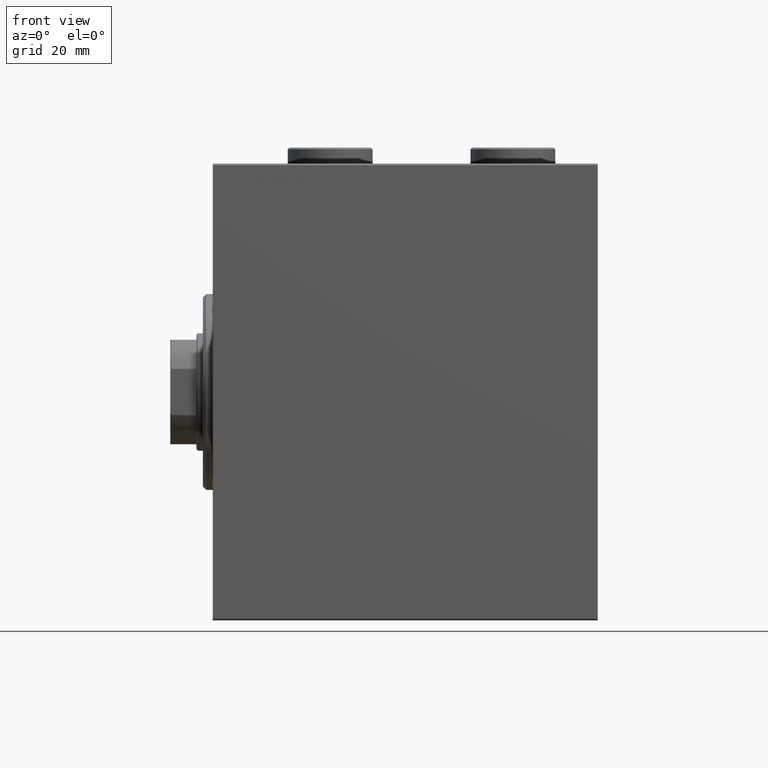
[diagram: clean part render]
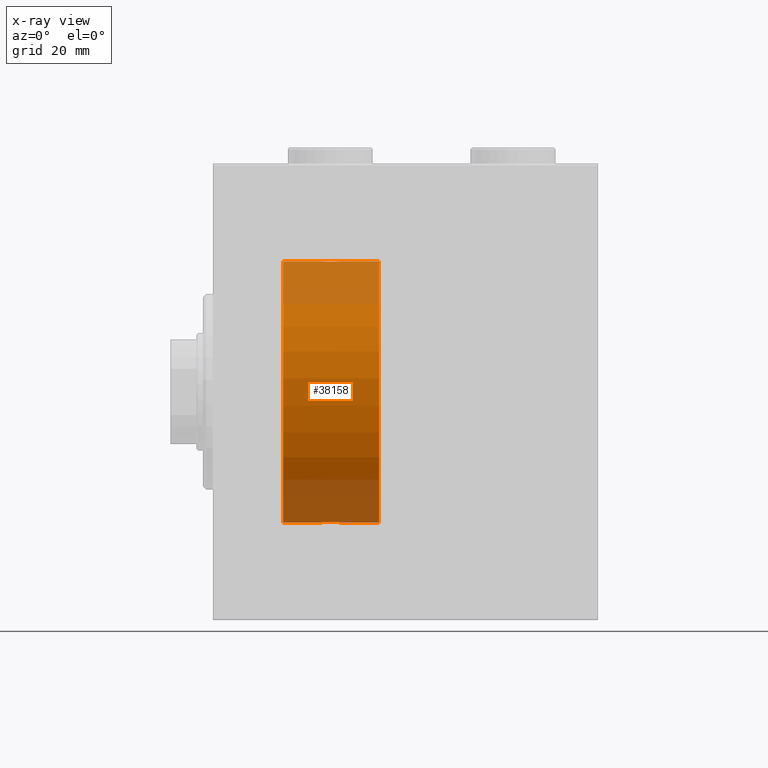
[diagram: x-ray — body ghosted, one internal face saturated and labeled with its STEP entity id]
A machine part, front view, then the same camera in x-ray: the body is ghosted and one INTERNAL B-rep face — a face not visible from any outside direction — is saturated and labeled: STEP entity #38158.
In plain terms, the highlighted cylindrical surface (partial cylindrical patch) has radius 40 mm, axis along (-1, -0, -0).
Its self-contained STEP definition (entity closure, byte-faithful):
#667 = DIRECTION ( 'NONE',  ( -1.000000000000000000, -0.000000000000000000, -0.000000000000000000 ) ) ;
#1118 = ORIENTED_EDGE ( 'NONE', *, *, #4089, .F. ) ;
#2106 = DIRECTION ( 'NONE',  ( 0.000000000000000000, 0.000000000000000000, 1.000000000000000000 ) ) ;
#2261 = CARTESIAN_POINT ( 'NONE',  ( 33.73902383005257377, -1.981471132463168638, 39.95113231465138881 ) ) ;
#3021 = VERTEX_POINT ( 'NONE', #14006 ) ;
#3136 = CARTESIAN_POINT ( 'NONE',  ( 36.20041286019198168, -2.999840380514735116, -39.88735335562824957 ) ) ;
#3814 = CARTESIAN_POINT ( 'NONE',  ( 35.03510674146484405, -2.847401743820449305, -39.89859630624607689 ) ) ;
#4062 = DIRECTION ( 'NONE',  ( -1.000000000000000000, -0.000000000000000000, -0.000000000000000000 ) ) ;
#4089 = EDGE_CURVE ( 'NONE', #32821, #32331, #4278, .T. ) ;
#4278 = LINE ( 'NONE', #39022, #11194 ) ;
#4345 = B_SPLINE_CURVE_WITH_KNOTS ( 'NONE', 3,
 ( #17402, #45455, #38788, #10731, #14176, #39011, #41782, #24538, #24993, #28215, #7492, #10953, #17175, #45237, #42239, #24766, #3136, #38333, #28442, #21304, #3814, #27538, #31426, #31207, #13725, #27759, #34446, #42459, #13941, #10271, #21082, #10496 ),
 .UNSPECIFIED., .F., .F.,
 ( 4, 2, 2, 2, 2, 2, 2, 2, 2, 2, 2, 2, 2, 2, 2, 4 ),
 ( 0.009382660366305110508, 0.009968941372944146312, 0.01055522237958318212, 0.01114150338622221792, 0.01172778439286125372, 0.01231406539950028953, 0.01290034640613932533, 0.01348662741277836113, 0.01407290841941739694, 0.01465918942605643274, 0.01524547043269546855, 0.01583175143933450435, 0.01641803244597354189, 0.01700431345261257596, 0.01759059445925161003, 0.01876315647252968163 ),
 .UNSPECIFIED. ) ;
#6175 = CARTESIAN_POINT ( 'NONE',  ( 32.99999999999999289, -1.483452932268112700E-23, 40.00000000000000000 ) ) ;
#6403 = CARTESIAN_POINT ( 'NONE',  ( 39.00000000000000000, -4.750840494920854782E-16, 40.00000000000000000 ) ) ;
#6792 = ORIENTED_EDGE ( 'NONE', *, *, #20365, .F. ) ;
#6892 = CIRCLE ( 'NONE', #22333, 40.00000000000000000 ) ;
#7492 = CARTESIAN_POINT ( 'NONE',  ( 37.83044822822401443, -2.384933850258100119, -39.92898715513241115 ) ) ;
#7858 = DIRECTION ( 'NONE',  ( 0.000000000000000000, 0.000000000000000000, 1.000000000000000000 ) ) ;
#8464 = VECTOR ( 'NONE', #667, 1000.000000000000000 ) ;
#8937 = CARTESIAN_POINT ( 'NONE',  ( 37.50088468404034359, -2.604941918888319385, 39.91523680494982784 ) ) ;
#9853 = ORIENTED_EDGE ( 'NONE', *, *, #30648, .T. ) ;
#9860 = CARTESIAN_POINT ( 'NONE',  ( 36.39109692509332916, -2.980812880639903906, 39.88879797994688658 ) ) ;
#10271 = CARTESIAN_POINT ( 'NONE',  ( 33.07973825008353685, -0.7903958539027382546, -39.99381900068937767 ) ) ;
#10496 = CARTESIAN_POINT ( 'NONE',  ( 32.99999999999999289, 4.605585004310627937E-15, -40.00000000000000000 ) ) ;
#10731 = CARTESIAN_POINT ( 'NONE',  ( 38.90425173651351543, -0.7773146824710984726, -39.99291453282344122 ) ) ;
#10953 = CARTESIAN_POINT ( 'NONE',  ( 37.50443082913466242, -2.602909538701748016, -39.91537030566259148 ) ) ;
#11194 = VECTOR ( 'NONE', #4062, 1000.000000000000000 ) ;
#11550 = CARTESIAN_POINT ( 'NONE',  ( 51.00000000000000711, 0.000000000000000000, 40.00000000000000000 ) ) ;
#12303 = EDGE_CURVE ( 'NONE', #3021, #16593, #31503, .T. ) ;
#12386 = CARTESIAN_POINT ( 'NONE',  ( 33.01898122889073761, -0.3904143323715978386, 39.99856256910221219 ) ) ;
#12455 = CYLINDRICAL_SURFACE ( 'NONE', #15555, 40.00000000000000000 ) ;
#12617 = CARTESIAN_POINT ( 'NONE',  ( 38.69537007708435539, -1.331594428131646302, 39.97823692017208685 ) ) ;
#12819 = CARTESIAN_POINT ( 'NONE',  ( 21.60000000000000142, 4.898587196589413026E-15, -40.00000000000000000 ) ) ;
#12929 = CARTESIAN_POINT ( 'NONE',  ( 39.00000000000000000, -4.750840494920854782E-16, 40.00000000000000000 ) ) ;
#13068 = CARTESIAN_POINT ( 'NONE',  ( 39.00000000000000000, 4.898587181754971267E-15, -40.00000000000000000 ) ) ;
#13073 = CARTESIAN_POINT ( 'NONE',  ( 35.60477516546423260, -2.980272303779554210, 39.88883864243167920 ) ) ;
#13299 = CARTESIAN_POINT ( 'NONE',  ( 35.79958713980801832, -2.999840380514748883, 39.88735335562824957 ) ) ;
#13385 = CARTESIAN_POINT ( 'NONE',  ( 51.00000000000000711, 4.898587196589413026E-15, -40.00000000000000000 ) ) ;
#13725 = CARTESIAN_POINT ( 'NONE',  ( 34.01863720485770415, -2.261082456166700005, -39.93628274425758917 ) ) ;
#13941 = CARTESIAN_POINT ( 'NONE',  ( 33.30462992291564461, -1.331594428131640528, -39.97823692017208685 ) ) ;
#14006 = CARTESIAN_POINT ( 'NONE',  ( 51.00000000000000711, 4.898587196589413026E-15, -40.00000000000000000 ) ) ;
#14176 = CARTESIAN_POINT ( 'NONE',  ( 38.84665273013138176, -0.9668189122103333366, -39.98872185468385254 ) ) ;
#15555 = AXIS2_PLACEMENT_3D ( 'NONE', #23051, #33628, #2106 ) ;
#16297 = CARTESIAN_POINT ( 'NONE',  ( 37.32853644746295885, -2.696981015661930936, 39.90904630908467254 ) ) ;
#16593 = VERTEX_POINT ( 'NONE', #13068 ) ;
#16977 = CARTESIAN_POINT ( 'NONE',  ( 33.61492399084645655, -1.830402106103517834, 39.95843610133493229 ) ) ;
#17175 = CARTESIAN_POINT ( 'NONE',  ( 37.33224268865864559, -2.695129988695729839, -39.90917164320280364 ) ) ;
#17402 = CARTESIAN_POINT ( 'NONE',  ( 39.00000000000000000, 4.898587181754971267E-15, -40.00000000000000000 ) ) ;
#18192 = LINE ( 'NONE', #20735, #24905 ) ;
#18194 = ORIENTED_EDGE ( 'NONE', *, *, #12303, .T. ) ;
#18256 = DIRECTION ( 'NONE',  ( 0.000000000000000000, 0.000000000000000000, 1.000000000000000000 ) ) ;
#18664 = CARTESIAN_POINT ( 'NONE',  ( 51.00000000000000711, 0.000000000000000000, 0.000000000000000000 ) ) ;
#18985 = VERTEX_POINT ( 'NONE', #44049 ) ;
#19532 = CARTESIAN_POINT ( 'NONE',  ( 35.03061658105534093, -2.845855236045346626, 39.89870693240651178 ) ) ;
#20223 = CARTESIAN_POINT ( 'NONE',  ( 33.09574826348647036, -0.7773146824711030245, 39.99291453282344833 ) ) ;
#20306 = DIRECTION ( 'NONE',  ( -1.000000000000000000, -0.000000000000000000, -0.000000000000000000 ) ) ;
#20365 = EDGE_CURVE ( 'NONE', #3021, #31234, #43809, .T. ) ;
#20735 = CARTESIAN_POINT ( 'NONE',  ( 51.00000000000000711, 0.000000000000000000, 40.00000000000000000 ) ) ;
#21082 = CARTESIAN_POINT ( 'NONE',  ( 32.99999999999998579, -0.3964922677423637909, -39.99999999999998579 ) ) ;
#21304 = CARTESIAN_POINT ( 'NONE',  ( 35.22544321173658943, -2.904869018727217700, -39.89440043036668726 ) ) ;
#22333 = AXIS2_PLACEMENT_3D ( 'NONE', #28615, #39187, #18256 ) ;
#22830 = ORIENTED_EDGE ( 'NONE', *, *, #44843, .T. ) ;
#23051 = CARTESIAN_POINT ( 'NONE',  ( 51.00000000000000711, 0.000000000000000000, 0.000000000000000000 ) ) ;
#23208 = ORIENTED_EDGE ( 'NONE', *, *, #29493, .T. ) ;
#23237 = VERTEX_POINT ( 'NONE', #12929 ) ;
#23408 = VERTEX_POINT ( 'NONE', #12819 ) ;
#23442 = CARTESIAN_POINT ( 'NONE',  ( 34.49556917086534469, -2.602909538701760450, 39.91537030566259148 ) ) ;
#23901 = CARTESIAN_POINT ( 'NONE',  ( 36.96489325853514885, -2.847401743820463516, 39.89859630624608400 ) ) ;
#24538 = CARTESIAN_POINT ( 'NONE',  ( 38.38507600915353635, -1.830402106103512505, -39.95843610133493229 ) ) ;
#24766 = CARTESIAN_POINT ( 'NONE',  ( 36.39522483453576029, -2.980272303779541332, -39.88883864243169342 ) ) ;
#24905 = VECTOR ( 'NONE', #35687, 1000.000000000000000 ) ;
#24993 = CARTESIAN_POINT ( 'NONE',  ( 38.26097616994740491, -1.981471132463162643, -39.95113231465139592 ) ) ;
#26015 = EDGE_CURVE ( 'NONE', #31234, #23237, #18192, .T. ) ;
#26417 = CARTESIAN_POINT ( 'NONE',  ( 35.22130476584258219, -2.903766417398241373, 39.89448096967571189 ) ) ;
#26882 = CARTESIAN_POINT ( 'NONE',  ( 38.38251680911463382, -1.833695109615725904, 39.95828327492363741 ) ) ;
#27339 = CARTESIAN_POINT ( 'NONE',  ( 36.19560531073085485, -3.000157693440645090, 39.88732948994960026 ) ) ;
#27538 = CARTESIAN_POINT ( 'NONE',  ( 34.67146355253704826, -2.696981015661917613, -39.90904630908468675 ) ) ;
#27759 = CARTESIAN_POINT ( 'NONE',  ( 33.74170329679496660, -1.984537326394300250, -39.95097977400577349 ) ) ;
#27769 = ORIENTED_EDGE ( 'NONE', *, *, #26015, .F. ) ;
#28215 = CARTESIAN_POINT ( 'NONE',  ( 37.98461447812278635, -2.258217541132897743, -39.93644519243654400 ) ) ;
#28442 = CARTESIAN_POINT ( 'NONE',  ( 35.60890307490667794, -2.980812880639892359, -39.88879797994688658 ) ) ;
#28615 = CARTESIAN_POINT ( 'NONE',  ( 21.60000000000000142, 0.000000000000000000, 0.000000000000000000 ) ) ;
#29493 = EDGE_CURVE ( 'NONE', #16593, #18985, #4345, .T. ) ;
#29708 = VECTOR ( 'NONE', #20306, 1000.000000000000000 ) ;
#30100 = CARTESIAN_POINT ( 'NONE',  ( 37.98136279514228875, -2.261082456166712440, 39.93628274425758207 ) ) ;
#30337 = CARTESIAN_POINT ( 'NONE',  ( 37.82690184632409824, -2.387636253591825408, 39.92882473497732576 ) ) ;
#30648 = EDGE_CURVE ( 'NONE', #32821, #23237, #43195, .T. ) ;
#31011 = CARTESIAN_POINT ( 'NONE',  ( 34.01538552187719233, -2.258217541132904849, 39.93644519243652979 ) ) ;
#31207 = CARTESIAN_POINT ( 'NONE',  ( 34.17309815367588754, -2.387636253591812974, -39.92882473497732576 ) ) ;
#31234 = VERTEX_POINT ( 'NONE', #11550 ) ;
#31426 = CARTESIAN_POINT ( 'NONE',  ( 34.49911531595966352, -2.604941918888306507, -39.91523680494982784 ) ) ;
#31503 = LINE ( 'NONE', #42312, #8464 ) ;
#31757 = ORIENTED_EDGE ( 'NONE', *, *, #45070, .T. ) ;
#32061 = AXIS2_PLACEMENT_3D ( 'NONE', #18664, #43490, #7858 ) ;
#32098 = CARTESIAN_POINT ( 'NONE',  ( 21.60000000000000142, 0.000000000000000000, 40.00000000000000000 ) ) ;
#32331 = VERTEX_POINT ( 'NONE', #32098 ) ;
#32821 = VERTEX_POINT ( 'NONE', #43515 ) ;
#33628 = DIRECTION ( 'NONE',  ( -1.000000000000000000, -0.000000000000000000, -0.000000000000000000 ) ) ;
#33790 = CARTESIAN_POINT ( 'NONE',  ( 33.39566400087915099, -1.502129635934003948, 39.97212271185185983 ) ) ;
#34259 = CARTESIAN_POINT ( 'NONE',  ( 33.30278659419118981, -1.327859336864149364, 39.97836169682016561 ) ) ;
#34446 = CARTESIAN_POINT ( 'NONE',  ( 33.61748319088535908, -1.833695109615714802, -39.95828327492363741 ) ) ;
#34565 = LINE ( 'NONE', #13385, #29708 ) ;
#35687 = DIRECTION ( 'NONE',  ( -1.000000000000000000, -0.000000000000000000, -0.000000000000000000 ) ) ;
#37000 = CARTESIAN_POINT ( 'NONE',  ( 33.15334726986859692, -0.9668189122103379995, 39.98872185468384544 ) ) ;
#37616 = EDGE_LOOP ( 'NONE', ( #6792, #18194, #23208, #31757, #22830, #1118, #9853, #27769 ) ) ;
#37923 = CARTESIAN_POINT ( 'NONE',  ( 38.92026174991647736, -0.7903958539027412522, 39.99381900068937057 ) ) ;
#38158 = ADVANCED_FACE ( 'NONE', ( #43964 ), #12455, .F. ) ;
#38333 = CARTESIAN_POINT ( 'NONE',  ( 35.80439468926913804, -3.000157693440631324, -39.88732948994960026 ) ) ;
#38788 = CARTESIAN_POINT ( 'NONE',  ( 38.98101877110926239, -0.3904143323715931757, -39.99856256910221219 ) ) ;
#39011 = CARTESIAN_POINT ( 'NONE',  ( 38.69721340580881730, -1.327859336864144035, -39.97836169682019403 ) ) ;
#39022 = CARTESIAN_POINT ( 'NONE',  ( 51.00000000000000711, 0.000000000000000000, 40.00000000000000000 ) ) ;
#39187 = DIRECTION ( 'NONE',  ( -1.000000000000000000, 0.000000000000000000, 0.000000000000000000 ) ) ;
#40447 = CARTESIAN_POINT ( 'NONE',  ( 36.77455678826340346, -2.904869018727227470, 39.89440043036668726 ) ) ;
#40904 = CARTESIAN_POINT ( 'NONE',  ( 39.00000000000000000, -0.3964922677423686759, 40.00000000000000000 ) ) ;
#41134 = CARTESIAN_POINT ( 'NONE',  ( 32.99999999999998579, -0.1957844162750546346, 39.99999999999999289 ) ) ;
#41369 = CARTESIAN_POINT ( 'NONE',  ( 34.16955177177597847, -2.384933850258112553, 39.92898715513240404 ) ) ;
#41782 = CARTESIAN_POINT ( 'NONE',  ( 38.60433599912083480, -1.502129635934000396, -39.97212271185185273 ) ) ;
#42239 = CARTESIAN_POINT ( 'NONE',  ( 36.77869523415743913, -2.903766417398228938, -39.89448096967571900 ) ) ;
#42312 = CARTESIAN_POINT ( 'NONE',  ( 51.00000000000000711, 4.898587196589413026E-15, -40.00000000000000000 ) ) ;
#42459 = CARTESIAN_POINT ( 'NONE',  ( 33.39811271871507614, -1.506322235190781456, -39.97196309111974699 ) ) ;
#43195 = B_SPLINE_CURVE_WITH_KNOTS ( 'NONE', 3,
 ( #6175, #41134, #12386, #20223, #37000, #34259, #33790, #16977, #2261, #31011, #41369, #23442, #44811, #19532, #26417, #13073, #13299, #27339, #9860, #40447, #23901, #16297, #8937, #30337, #30100, #44356, #26882, #44124, #12617, #37923, #40904, #6403 ),
 .UNSPECIFIED., .F., .F.,
 ( 4, 2, 2, 2, 2, 2, 2, 2, 2, 2, 2, 2, 2, 2, 2, 4 ),
 ( 0.009382660366305094896, 0.009968941372944132434, 0.01055522237958316824, 0.01114150338622220404, 0.01172778439286124158, 0.01231406539950027912, 0.01290034640613931492, 0.01348662741277835073, 0.01407290841941738826, 0.01465918942605642580, 0.01524547043269546161, 0.01583175143933449741, 0.01641803244597353495, 0.01700431345261257249, 0.01759059445925161003, 0.01876315647252968163 ),
 .UNSPECIFIED. ) ;
#43490 = DIRECTION ( 'NONE',  ( -1.000000000000000000, 0.000000000000000000, 0.000000000000000000 ) ) ;
#43515 = CARTESIAN_POINT ( 'NONE',  ( 32.99999999999999289, -1.483452932268112700E-23, 40.00000000000000000 ) ) ;
#43809 = CIRCLE ( 'NONE', #32061, 40.00000000000000000 ) ;
#43964 = FACE_OUTER_BOUND ( 'NONE', #37616, .T. ) ;
#44049 = CARTESIAN_POINT ( 'NONE',  ( 32.99999999999999289, 4.605585004310627937E-15, -40.00000000000000000 ) ) ;
#44124 = CARTESIAN_POINT ( 'NONE',  ( 38.60188728128492386, -1.506322235190791226, 39.97196309111975410 ) ) ;
#44356 = CARTESIAN_POINT ( 'NONE',  ( 38.25829670320502629, -1.984537326394312018, 39.95097977400578060 ) ) ;
#44811 = CARTESIAN_POINT ( 'NONE',  ( 34.66775731134134730, -2.695129988695740053, 39.90917164320281785 ) ) ;
#44843 = EDGE_CURVE ( 'NONE', #23408, #32331, #6892, .T. ) ;
#45070 = EDGE_CURVE ( 'NONE', #18985, #23408, #34565, .T. ) ;
#45237 = CARTESIAN_POINT ( 'NONE',  ( 36.96938341894465907, -2.845855236045336856, -39.89870693240651178 ) ) ;
#45455 = CARTESIAN_POINT ( 'NONE',  ( 38.99999999999999289, -0.1957844162750510819, -40.00000000000000711 ) ) ;